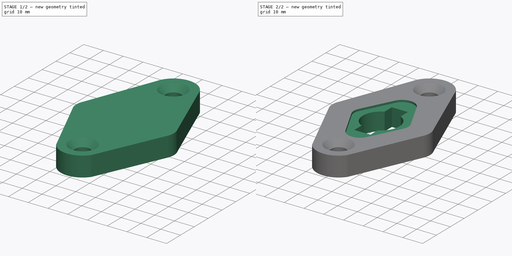
[diagram: build sequence overview — one tinted view per stage of 2, left to right]
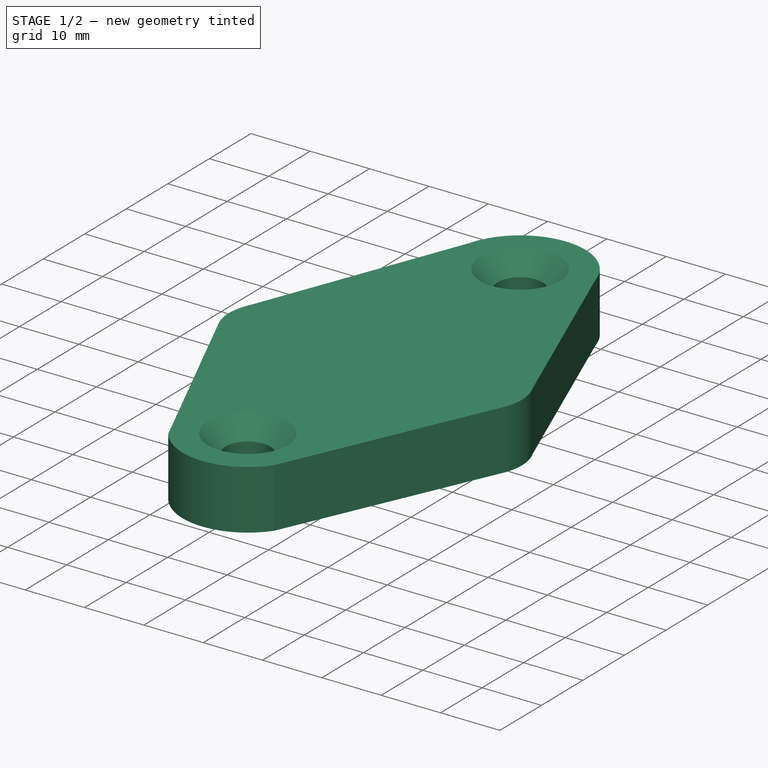
[diagram: stage 1 of 2 — iso view after this stage's code; geometry added in this stage tinted green]
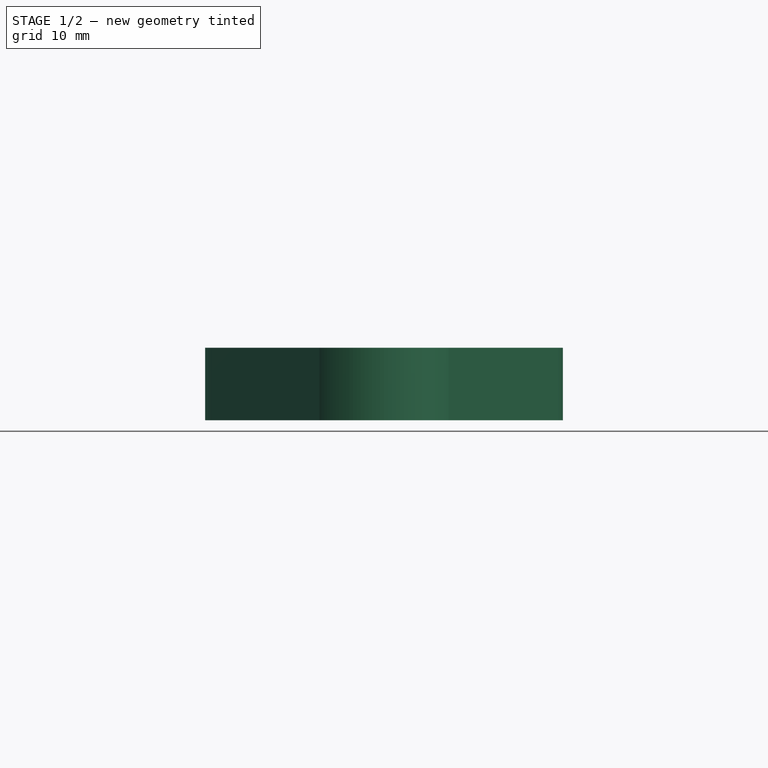
[diagram: stage 1 of 2 — front view after this stage's code; geometry added in this stage tinted green]
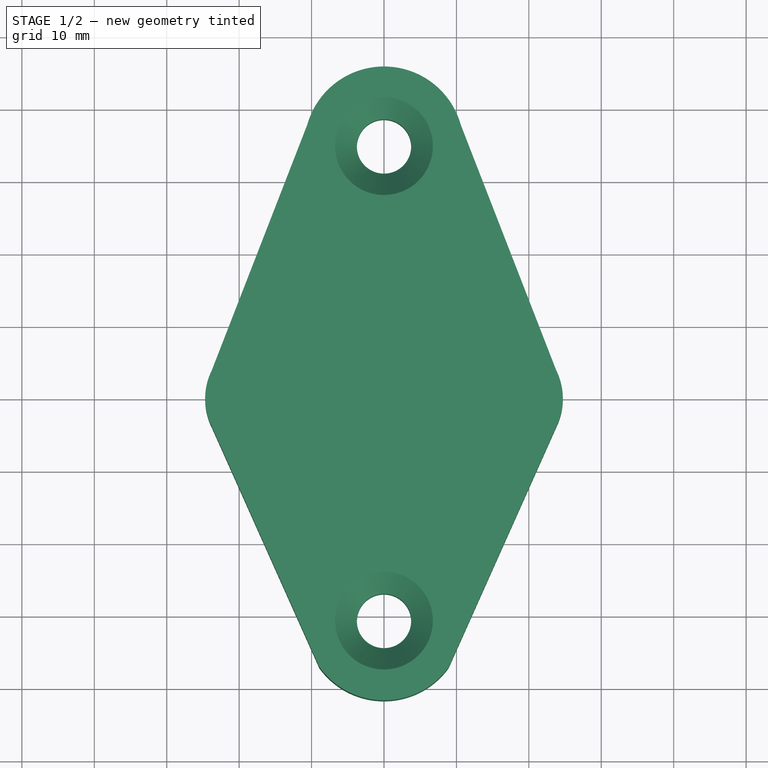
[diagram: stage 1 of 2 — top view after this stage's code; geometry added in this stage tinted green]
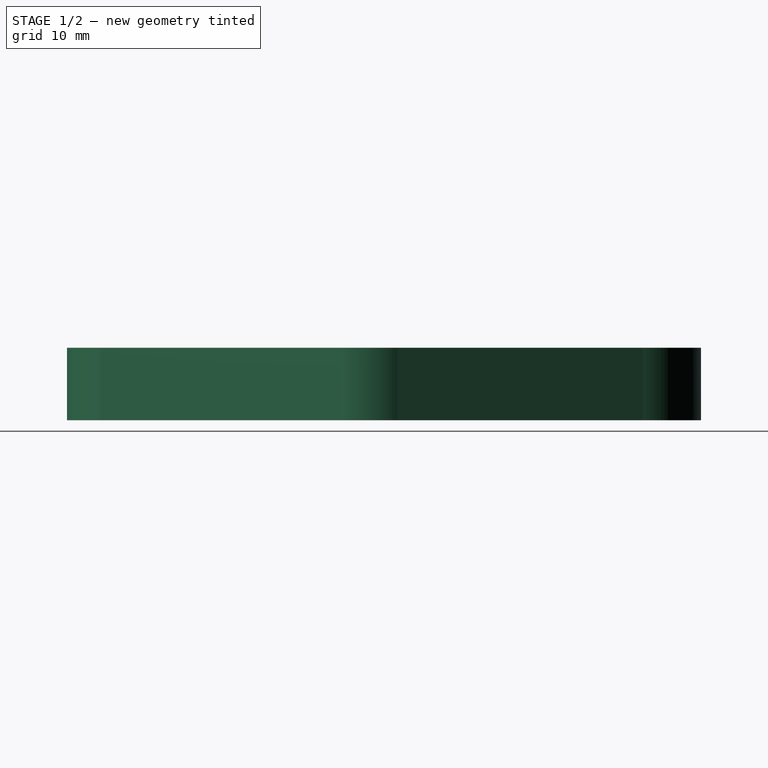
[diagram: stage 1 of 2 — right view after this stage's code; geometry added in this stage tinted green]
FCSTD DOCUMENT  (FreeCAD 0.21R33771 (Git))
Label: ex84
License: All rights reserved
LicenseURL: http://en.wikipedia.org/wiki/All_rights_reserved
objects: Sketcher::SketchObject×3, PartDesign::Pocket×2, PartDesign::Pad×1, PartDesign::Chamfer×1, PartDesign::Body×1
note: 12 computed .brp shape members not serialized (recipe doc carries the construction recipe); baked Part::Feature solids carry a one-line shape summary decoded from their .brp

FEATURE [Sketcher::SketchObject] Sketch
  FullyConstrained = false
  MapMode = 5
  Support = -> [XY_Plane]
  sketch-geometry (12):
    g0: ArcOfCircle CenterX=-15.9912 CenterY=0 CenterZ=0 NormalX=0 NormalY=0 NormalZ=1 AngleXU=0 Radius=8.70573 StartAngle=2.67648 EndAngle=3.60671
    g1: ArcOfCircle CenterX=15.9912 CenterY=0 CenterZ=0 NormalX=0 NormalY=0 NormalZ=1 AngleXU=0 Radius=8.70573 StartAngle=5.81807 EndAngle=6.7483
    g2: ArcOfCircle CenterX=0 CenterY=34.8429 CenterZ=0 NormalX=0 NormalY=0 NormalZ=1 AngleXU=0 Radius=10.9999 StartAngle=0.272576 EndAngle=2.86902
    g3: ArcOfCircle CenterX=0 CenterY=-30.6889 CenterZ=0 NormalX=0 NormalY=0 NormalZ=1 AngleXU=0 Radius=10.9999 StartAngle=3.76493 EndAngle=5.65985
    g4: LineSegment StartX=-10.5938 StartY=37.8042 StartZ=0 EndX=-23.7721 EndY=3.90473 EndZ=0
    g5: LineSegment StartX=-23.7721 StartY=-3.90473 StartZ=0 EndX=-8.9312 EndY=-37.11 EndZ=0
    g6: LineSegment StartX=8.9312 StartY=-37.11 StartZ=0 EndX=23.7721 EndY=-3.90473 EndZ=0
    g7: LineSegment StartX=10.5938 StartY=37.8042 StartZ=0 EndX=23.7721 EndY=3.90473 EndZ=0
    g8: LineSegment StartX=-23.7721 StartY=3.90473 StartZ=0 EndX=23.7721 EndY=3.90473 EndZ=0
    g9: LineSegment StartX=-23.7721 StartY=-3.90473 StartZ=0 EndX=23.7721 EndY=-3.90473 EndZ=0
    g10: Circle CenterX=0 CenterY=34.8429 CenterZ=0 NormalX=0 NormalY=0 NormalZ=1 AngleXU=0 Radius=3.74614
    g11: Circle CenterX=0 CenterY=-30.6889 CenterZ=0 NormalX=0 NormalY=0 NormalZ=1 AngleXU=0 Radius=3.74614
  constraints (27):
    c: PointOnObject(g0,g-1)
    c: Equal(g0,g1)
    c: Symmetric(g0,g1,g-1)
    c: PointOnObject(g2,g-2)
    c: PointOnObject(g3,g-2)
    c: Equal(g3,g2)
    c: Equal(g5,g6)
    c: Equal(g4,g7)
    c: Equal(g4,g5)
    c: Symmetric(g4,g5,g-1)
    c: Symmetric(g7,g6,g-1)
    c: Coincident(g8,g4)
    c: Coincident(g8,g7)
    c: Horizontal(g8)
    c: Coincident(g9,g5)
    c: Coincident(g9,g6)
    c: Coincident(g10,g2)
    c: Coincident(g11,g3)
    c: Equal(g11,g10)
    c: Coincident(g0,g4)
    c: PointOnObject(g0,g5)
    c: PointOnObject(g1,g7)
    c: Coincident(g1,g6)
    c: Coincident(g2,g4)
    c: Coincident(g2,g7)
    c: Coincident(g3,g5)
    c: Coincident(g3,g6)
FEATURE [PartDesign::Pad] Pad
  Direction = (0,0,1)
  Length = 10
  Length2 = 10
  Profile = -> Sketch
  ReferenceAxis = -> Sketch [N_Axis]
  Refine = true
  Type = 0
FEATURE [PartDesign::Chamfer] Chamfer
  Angle = 45
  Base = -> Pad [Edge30,Edge27]
  BaseFeature = -> Pad
  ChamferType = 0
  FlipDirection = false
  Refine = true
  Size = 3
  Size2 = 1
  SupportTransform = false
  UseAllEdges = false
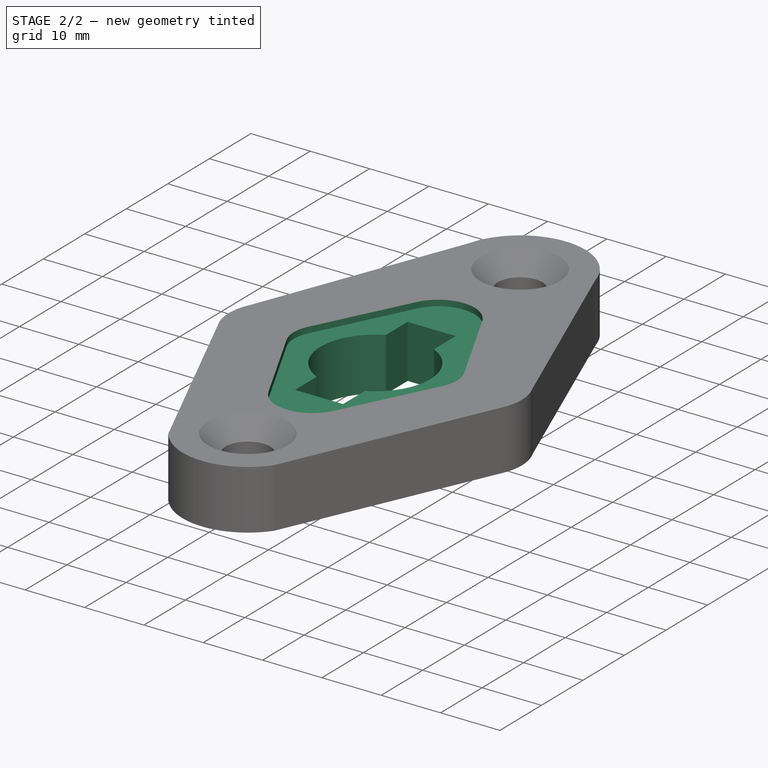
[diagram: stage 2 of 2 — iso view after this stage's code; geometry added in this stage tinted green]
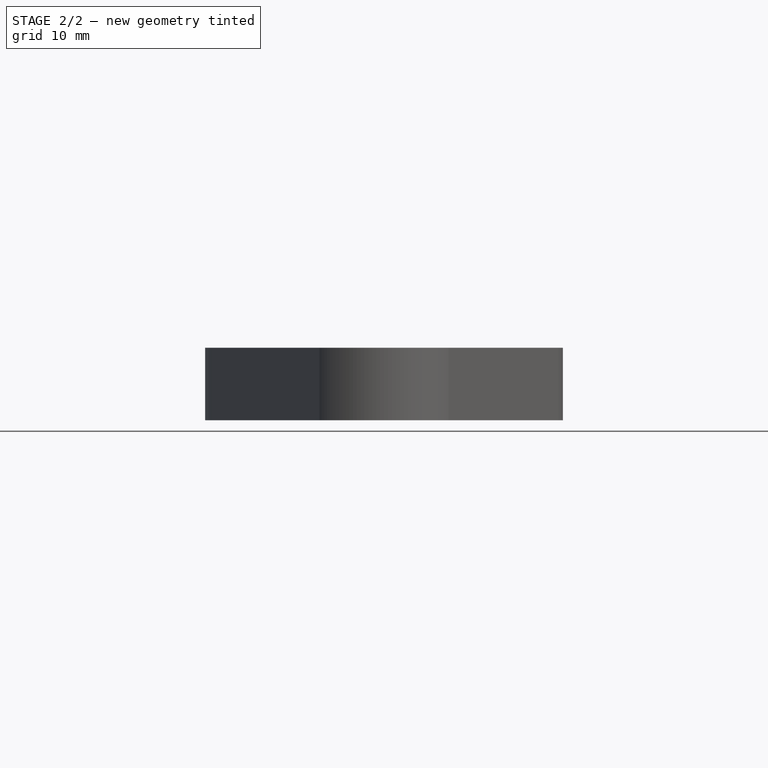
[diagram: stage 2 of 2 — front view after this stage's code; geometry added in this stage tinted green]
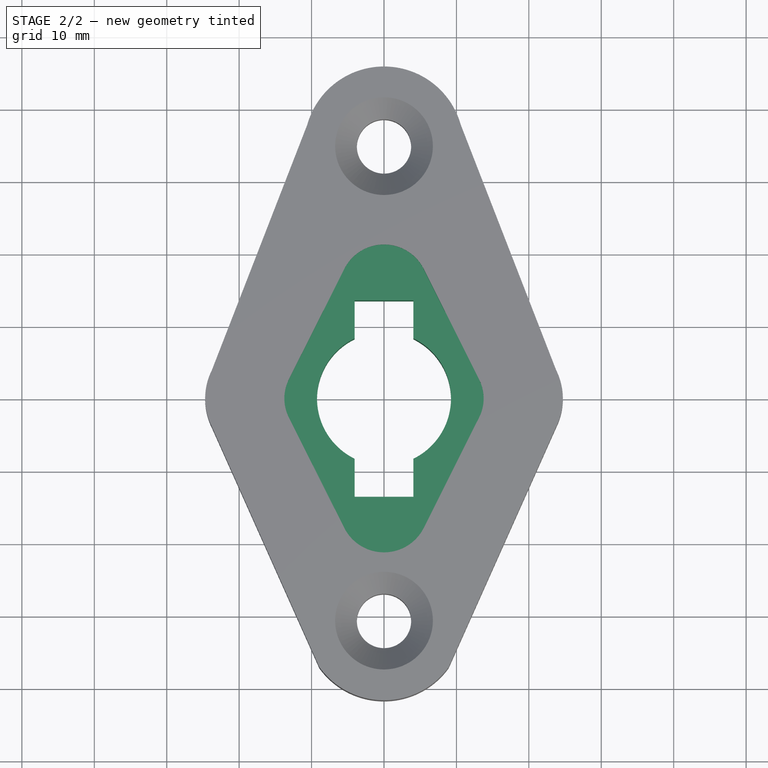
[diagram: stage 2 of 2 — top view after this stage's code; geometry added in this stage tinted green]
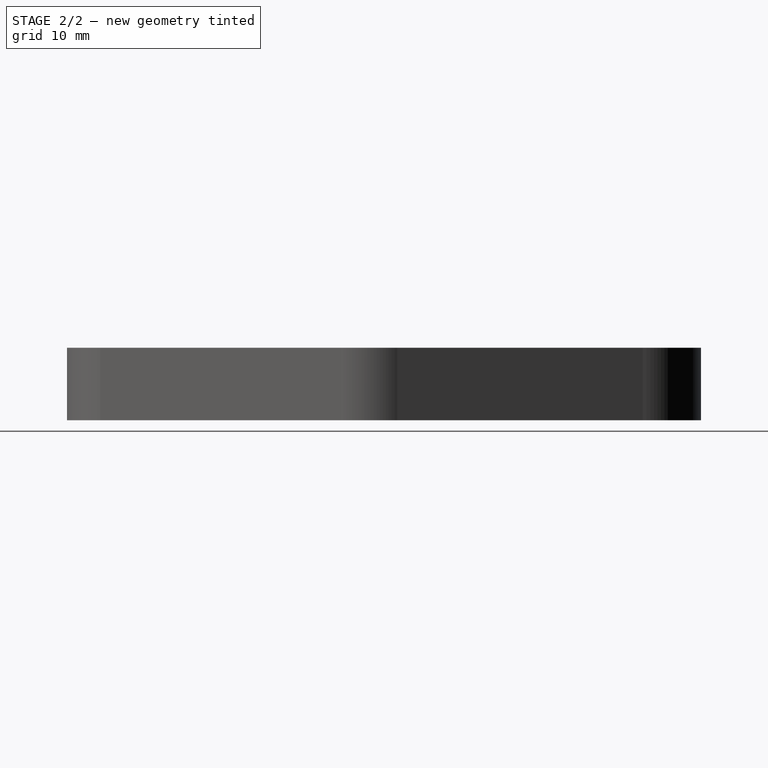
[diagram: stage 2 of 2 — right view after this stage's code; geometry added in this stage tinted green]
FEATURE [Sketcher::SketchObject] Sketch001
  FullyConstrained = false
  MapMode = 5
  Placement = pos=(0,0,10) rot=(0,0,1;0rad)
  Support = -> [Chamfer]
  sketch-geometry (12):
    g0: ArcOfCircle CenterX=0 CenterY=15.1128 CenterZ=0 NormalX=0 NormalY=0 NormalZ=1 AngleXU=0 Radius=6.14754 StartAngle=0.464729 EndAngle=2.67686
    g1: ArcOfCircle CenterX=-7.92087 CenterY=0 CenterZ=0 NormalX=0 NormalY=0 NormalZ=1 AngleXU=0 Radius=5.84001 StartAngle=2.67686 EndAngle=3.60632
    g2: ArcOfCircle CenterX=7.92087 CenterY=0 CenterZ=0 NormalX=0 NormalY=0 NormalZ=1 AngleXU=0 Radius=5.84001 StartAngle=5.81846 EndAngle=6.74791
    g3: ArcOfCircle CenterX=0 CenterY=-15.1128 CenterZ=0 NormalX=0 NormalY=0 NormalZ=1 AngleXU=0 Radius=6.14754 StartAngle=3.60632 EndAngle=5.81846
    g4: LineSegment StartX=-5.49555 StartY=17.868 StartZ=0 EndX=-13.1415 EndY=2.61738 EndZ=0
    g5: LineSegment StartX=-13.1415 StartY=-2.61738 StartZ=0 EndX=-5.49555 EndY=-17.868 EndZ=0
    g6: LineSegment StartX=5.49555 StartY=-17.868 StartZ=0 EndX=13.1415 EndY=-2.61738 EndZ=0
    g7: LineSegment StartX=5.49555 StartY=17.868 StartZ=0 EndX=13.1415 EndY=2.61738 EndZ=0
    g8: LineSegment StartX=-5.49555 StartY=17.868 StartZ=0 EndX=5.49555 EndY=17.868 EndZ=0
    g9: LineSegment StartX=-13.1415 StartY=2.61738 StartZ=0 EndX=-13.1415 EndY=-2.61738 EndZ=0
    g10: LineSegment StartX=-5.49555 StartY=-17.868 StartZ=0 EndX=5.49555 EndY=-17.868 EndZ=0
    g11: LineSegment StartX=13.1415 StartY=2.61738 StartZ=0 EndX=13.1415 EndY=-2.61738 EndZ=0
  constraints (27):
    c: PointOnObject(g0,g-2)
    c: PointOnObject(g1,g-1)
    c: Equal(g1,g2)
    c: Symmetric(g1,g2,g-1)
    c: Symmetric(g3,g0,g-1)
    c: Coincident(g8,g4)
    c: Coincident(g8,g7)
    c: Coincident(g9,g4)
    c: Coincident(g9,g5)
    c: Coincident(g10,g5)
    c: Coincident(g10,g6)
    c: Coincident(g11,g7)
    c: Coincident(g11,g6)
    c: Parallel(g11,g9)
    c: Perpendicular(g9,g-1)
    c: Equal(g10,g8)
    c: Horizontal(g8)
    c: Symmetric(g4,g5,g-1)
    c: Equal(g9,g11)
    c: Coincident(g0,g4)
    c: Coincident(g0,g7)
    c: Coincident(g1,g5)
    c: Tangent(g1,g4) = -1.5708
    c: Coincident(g2,g7)
    c: Coincident(g2,g6)
    c: Tangent(g3,g6) = -1.5708
    c: Coincident(g3,g5)
FEATURE [PartDesign::Pocket] Pocket
  BaseFeature = -> Chamfer
  Direction = (0,0,-1)
  Length = 1
  Length2 = 5
  Profile = -> Sketch001
  ReferenceAxis = -> Sketch001 [N_Axis]
  Refine = true
  Type = 0
FEATURE [Sketcher::SketchObject] Sketch002
  FullyConstrained = false
  MapMode = 5
  Placement = pos=(0,0,9) rot=(0,0,1;0rad)
  Support = -> [Pocket]
  sketch-geometry (9):
    g0: ArcOfCircle CenterX=0 CenterY=0 CenterZ=0 NormalX=0 NormalY=0 NormalZ=1 AngleXU=0 Radius=9.24983 StartAngle=2.02441 EndAngle=4.25877
    g1: LineSegment StartX=-4.05346 StartY=13.5617 StartZ=0 EndX=-4.05346 EndY=8.31437 EndZ=0
    g2: LineSegment StartX=-4.05346 StartY=-13.5617 StartZ=0 EndX=4.05346 EndY=-13.5617 EndZ=0
    g3: LineSegment StartX=4.05346 StartY=-13.5617 StartZ=0 EndX=4.05346 EndY=-8.31437 EndZ=0
    g4: LineSegment StartX=4.05346 StartY=13.5617 StartZ=0 EndX=-4.05346 EndY=13.5617 EndZ=0
    g5: GeomPoint X=0 Y=0 Z=0
    g6: LineSegment StartX=-4.05346 StartY=-8.31437 StartZ=0 EndX=-4.05346 EndY=-13.5617 EndZ=0
    g7: LineSegment StartX=4.05346 StartY=8.31437 StartZ=0 EndX=4.05346 EndY=13.5617 EndZ=0
    g8: ArcOfCircle CenterX=0 CenterY=0 CenterZ=0 NormalX=0 NormalY=0 NormalZ=1 AngleXU=0 Radius=9.24983 StartAngle=5.16601 EndAngle=7.40036
  constraints (17):
    c: Coincident(g0,g-1)
    c: Coincident(g6,g2)
    c: Coincident(g2,g3)
    c: Coincident(g7,g4)
    c: Coincident(g4,g1)
    c: Horizontal(g2)
    c: Horizontal(g4)
    c: Vertical(g1)
    c: Vertical(g3)
    c: Symmetric(g2,g1,g5)
    c: Coincident(g5,g0)
    c: Coincident(g8,g7)
    c: Coincident(g0,g1)
    c: Equal(g0,g8)
    c: Coincident(g0,g6)
    c: Coincident(g8,g3)
    c: Coincident(g0,g8)
FEATURE [PartDesign::Pocket] Pocket001
  BaseFeature = -> Pocket
  Direction = (0,0,-1)
  Length = 5
  Length2 = 5
  Profile = -> Sketch002
  ReferenceAxis = -> Sketch002 [N_Axis]
  Refine = true
  Type = 1
FEATURE [PartDesign::Body] Body
  Group = -> [Sketch,Pad,Chamfer,Sketch001,Pocket,Sketch002,Pocket001]
  Origin = -> Origin
  Tip = -> Pocket001
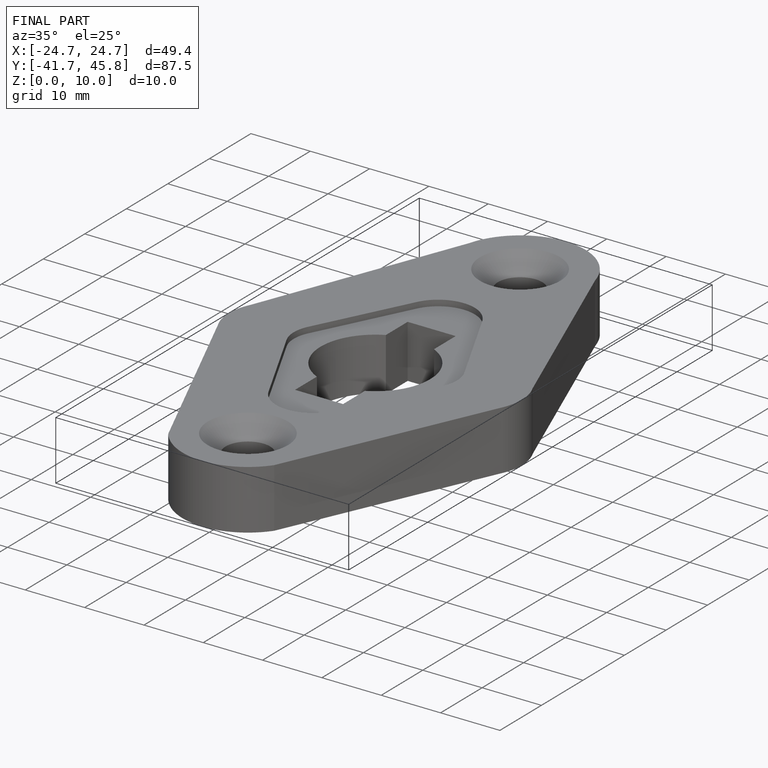
[diagram: finished part — iso view with bounding-box wireframe]
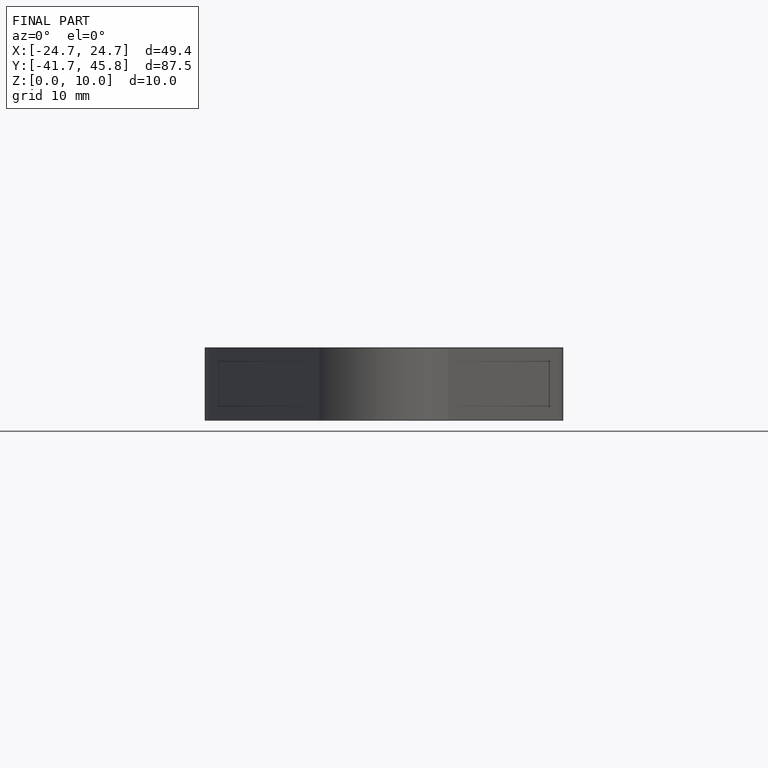
[diagram: finished part — front view with bounding-box wireframe]
